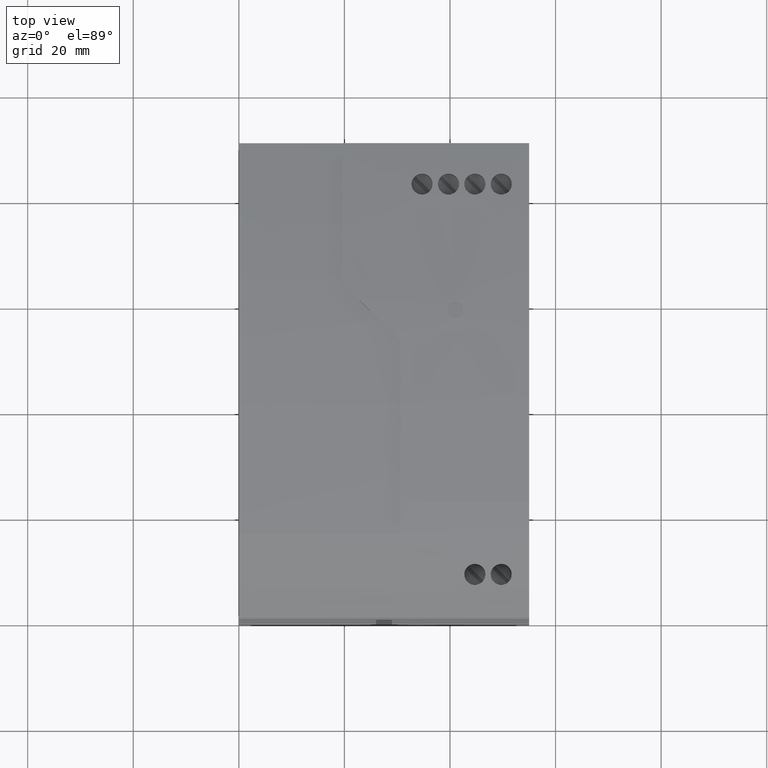
[diagram: clean part render]
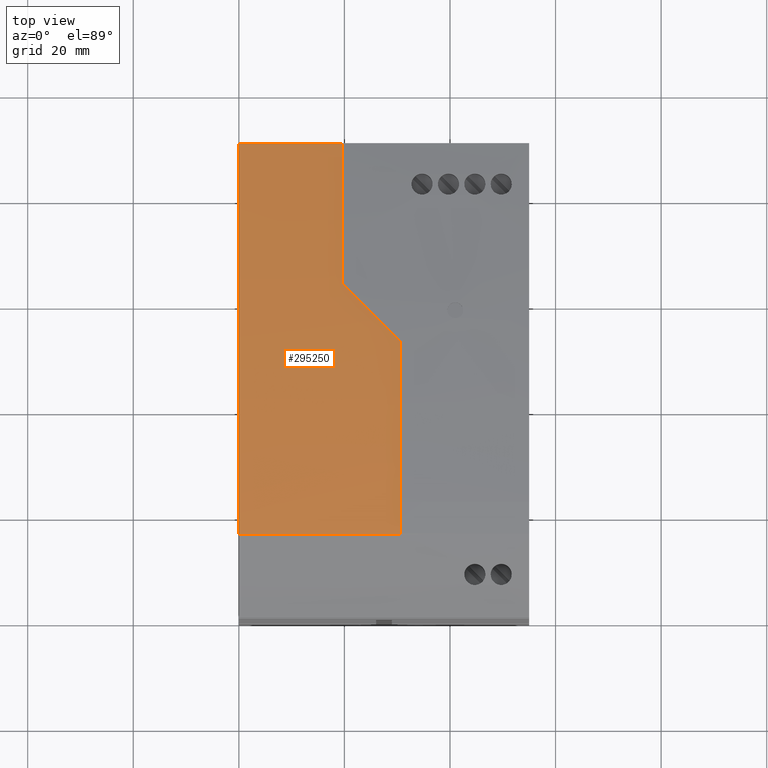
[diagram: same view with one face highlighted and labeled with its STEP entity id]
A machine part, top view. The second image highlights one B-rep face of the part: STEP entity #295250.
In plain terms, the highlighted cylindrical surface (partial cylindrical patch) has radius 349.75 mm, axis along (-1, 0, 0).
Its self-contained STEP definition (entity closure, byte-faithful):
#6630=CARTESIAN_POINT('',(-29.3456671638463,89.783813220005,-54.));
#6640=VERTEX_POINT('',#6630);
#7150=CARTESIAN_POINT('',(44.9984763926468,80.7724420598918,-54.));
#7160=VERTEX_POINT('',#7150);
#7190=CARTESIAN_POINT('',(-34.0174223565832,-259.934984106389,-54.));
#7200=DIRECTION('',(0.,0.,-1.));
#7210=DIRECTION('',(0.149866758396655,0.988706202432087,0.));
#7220=AXIS2_PLACEMENT_3D('',#7190,#7200,#7210);
#7230=CIRCLE('',#7220,349.75);
#7240=EDGE_CURVE('',#6640,#7160,#7230,.T.);
#264510=CARTESIAN_POINT('',(44.9984763926468,80.7724420598919,-34.4));
#264520=VERTEX_POINT('',#264510);
#264550=CARTESIAN_POINT('',(44.9984763926468,80.7724420598918,-34.4));
#264560=DIRECTION('',(0.,0.,-1.));
#264570=VECTOR('',#264560,1.);
#264580=LINE('',#264550,#264570);
#264590=EDGE_CURVE('',#264520,#7160,#264580,.T.);
#266260=CARTESIAN_POINT('',(-29.3456671638458,89.7838132200049,1.));
#266270=DIRECTION('',(0.,0.,1.));
#266280=VECTOR('',#266270,1.);
#266290=LINE('',#266260,#266280);
#266300=CARTESIAN_POINT('',(-29.345667163846,89.783813220005,-23.4));
#266310=VERTEX_POINT('',#266300);
#266320=EDGE_CURVE('',#6640,#266310,#266290,.T.);
#294700=CARTESIAN_POINT('',(7.39847639264678,87.3542121419162,-23.4));
#294710=VERTEX_POINT('',#294700);
#294740=CARTESIAN_POINT('',(-34.0174223565832,-259.934984106389,
18.01589874923));
#294750=DIRECTION('',(0.707106781186548,0.,0.707106781186548));
#294760=DIRECTION('',(0.707106781186548,-2.59033395531104E-17,
-0.707106781186548));
#294770=AXIS2_PLACEMENT_3D('',#294740,#294750,#294760);
#294780=ELLIPSE('',#294770,494.62119343999,349.75);
#294790=CARTESIAN_POINT('',(18.3984763926468,85.8650101942338,-34.4));
#294800=VERTEX_POINT('',#294790);
#294810=EDGE_CURVE('',#294800,#294710,#294780,.T.);
#295000=CARTESIAN_POINT('',(-34.0174223565832,-259.934984106389,-23.4));
#295010=DIRECTION('',(0.,0.,-1.));
#295020=DIRECTION('',(0.149866758396655,0.988706202432087,0.));
#295030=AXIS2_PLACEMENT_3D('',#295000,#295010,#295020);
#295040=CYLINDRICAL_SURFACE('',#295030,349.75);
#295050=ORIENTED_EDGE('',*,*,#264590,.T.);
#295060=CARTESIAN_POINT('',(-34.0174223565832,-259.934984106389,-34.4));
#295070=DIRECTION('',(0.,0.,-1.));
#295080=DIRECTION('',(0.149866758396655,0.988706202432087,0.));
#295090=AXIS2_PLACEMENT_3D('',#295060,#295070,#295080);
#295100=CIRCLE('',#295090,349.75);
#295110=EDGE_CURVE('',#294800,#264520,#295100,.T.);
#295120=ORIENTED_EDGE('',*,*,#295110,.T.);
#295130=ORIENTED_EDGE('',*,*,#294810,.F.);
#295140=CARTESIAN_POINT('',(-34.0174223565832,-259.934984106389,-23.4));
#295150=DIRECTION('',(0.,0.,-1.));
#295160=DIRECTION('',(0.149866758396655,0.988706202432087,0.));
#295170=AXIS2_PLACEMENT_3D('',#295140,#295150,#295160);
#295180=CIRCLE('',#295170,349.75);
#295190=EDGE_CURVE('',#266310,#294710,#295180,.T.);
#295200=ORIENTED_EDGE('',*,*,#295190,.T.);
#295210=ORIENTED_EDGE('',*,*,#266320,.T.);
#295220=ORIENTED_EDGE('',*,*,#7240,.F.);
#295230=EDGE_LOOP('',(#295220,#295210,#295200,#295130,#295120,#295050));
#295240=FACE_OUTER_BOUND('',#295230,.T.);
#295250=ADVANCED_FACE('',(#295240),#295040,.T.);